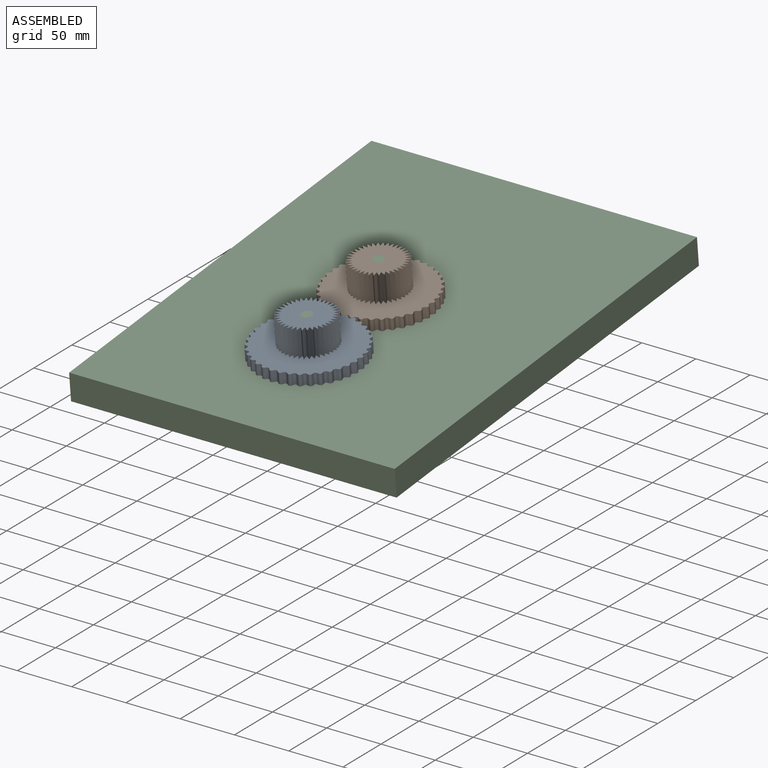
[diagram: assembled view]
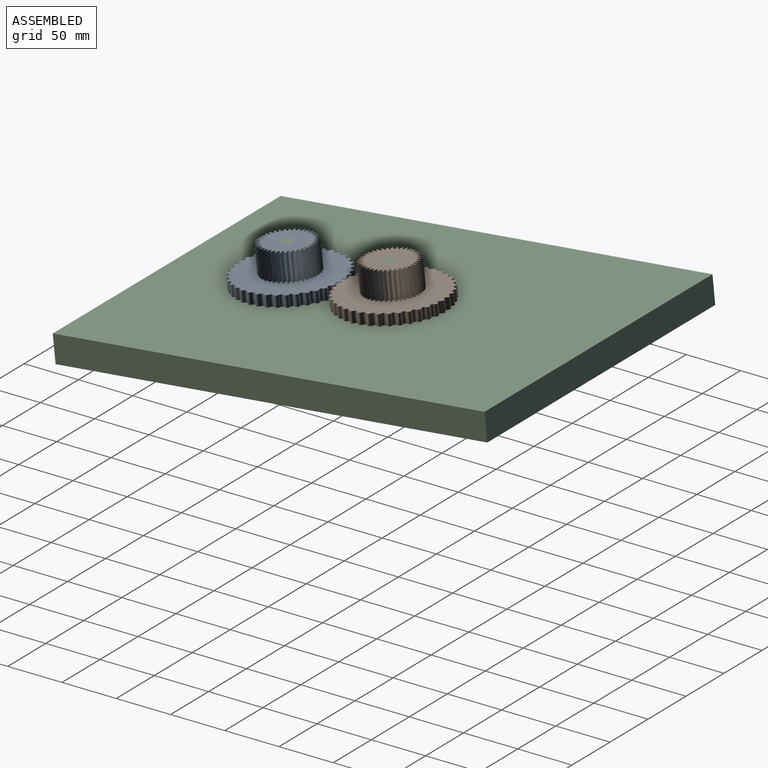
[diagram: assembled view, second angle]
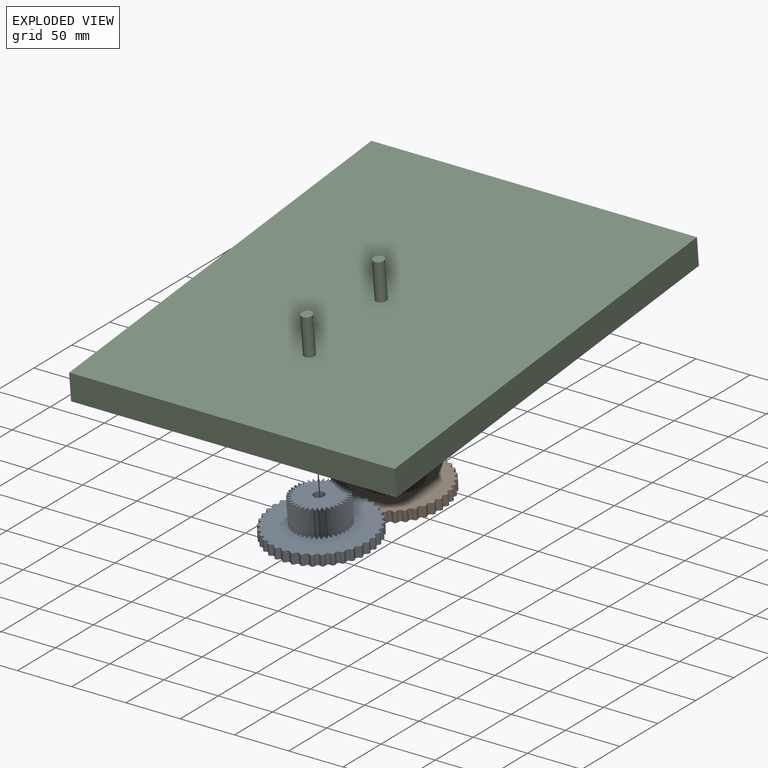
[diagram: exploded view]
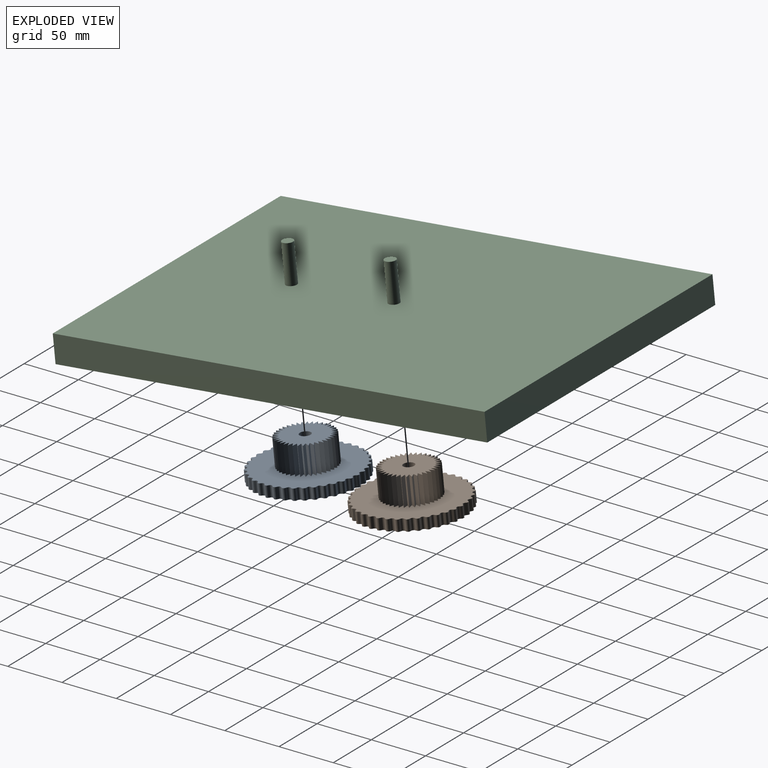
[diagram: exploded view, second angle]
ASSEMBLY  parts=3 mates=2
PART A: 233 faces, bbox 97.1x97.1x35 mm
  f0: plane 97.14x97.08mm, normal (0,0,1), area 5476.4mm2, adj f1,f2,f3,f4,f5,f6,f7,f8
  f1: plane 10x1.14mm, normal (0.46,0.89,0), area 12.8mm2, adj f0,f78,f159,f232
  f2: plane 10x1.22mm, normal (-0.99,0.16,0), area 12.4mm2, adj f0,f78,f159,f160
  f3: plane 10x1.22mm, normal (0.3,0.95,0), area 12.8mm2, adj f0,f78,f160,f161
  f4: plane 10x1.24mm, normal (-1,0,0), area 12.4mm2, adj f0,f78,f161,f162
  f5: plane 10x1.26mm, normal (0.14,0.99,0), area 12.8mm2, adj f0,f78,f162,f163
  f6: plane 10x1.22mm, normal (-0.99,-0.17,0), area 12.4mm2, adj f0,f78,f163,f164
  f7: plane 10x1.28mm, normal (-0.02,1,0), area 12.8mm2, adj f0,f78,f164,f165
  f8: plane 10x1.17mm, normal (-0.95,-0.33,0), area 12.4mm2, adj f0,f78,f165,f166
  f9: plane 10x1.26mm, normal (-0.19,0.98,0), area 12.8mm2, adj f0,f78,f166,f167
  f10: plane 10x1.09mm, normal (-0.88,-0.48,0), area 12.4mm2, adj f0,f78,f167,f168
  f11: plane 10x1.2mm, normal (-0.35,0.94,0), area 12.8mm2, adj f0,f78,f168,f169
  f12: plane 10x0.97mm, normal (-0.79,-0.62,0), area 12.4mm2, adj f0,f78,f169,f170
  f13: plane 10x1.11mm, normal (-0.5,0.87,0), area 12.8mm2, adj f0,f78,f170,f171
  f14: plane 10x0.91mm, normal (-0.68,-0.74,0), area 12.4mm2, adj f0,f78,f171,f172
  f15: plane 10x0.99mm, normal (-0.63,0.78,0), area 12.8mm2, adj f0,f78,f172,f173
  f16: plane 10x1.04mm, normal (-0.55,-0.84,0), area 12.4mm2, adj f0,f78,f173,f174
  f17: plane 10x0.96mm, normal (-0.75,0.66,0), area 12.8mm2, adj f0,f78,f174,f175
  f18: plane 10x1.13mm, normal (-0.4,-0.92,0), area 12.4mm2, adj f0,f78,f175,f176
  f19: plane 10x1.08mm, normal (-0.85,0.53,0), area 12.8mm2, adj f0,f78,f176,f177
  f20: plane 10x1.2mm, normal (-0.24,-0.97,0), area 12.4mm2, adj f0,f78,f177,f178
  f21: plane 10x1.18mm, normal (-0.92,0.38,0), area 12.8mm2, adj f0,f78,f178,f179
  f22: plane 10x1.23mm, normal (-0.08,-1,0), area 12.4mm2, adj f0,f78,f179,f180
  f23: plane 10x1.25mm, normal (-0.97,0.22,0), area 12.8mm2, adj f0,f78,f180,f181
  f24: plane 10x1.23mm, normal (0.08,-1,0), area 12.4mm2, adj f0,f78,f181,f182
  f25: plane 10x1.28mm, normal (-1,0.06,0), area 12.8mm2, adj f0,f78,f182,f183
  f26: plane 10x1.2mm, normal (0.25,-0.97,0), area 12.4mm2, adj f0,f78,f183,f184
  f27: plane 10x1.27mm, normal (-0.99,-0.1,0), area 12.8mm2, adj f0,f78,f184,f185
  f28: plane 10x1.13mm, normal (0.4,-0.91,0), area 12.4mm2, adj f0,f78,f185,f186
  f29: plane 10x1.23mm, normal (-0.96,-0.27,0), area 12.8mm2, adj f0,f78,f186,f187
  f30: plane 10x1.03mm, normal (0.55,-0.84,0), area 12.4mm2, adj f0,f78,f187,f188
  f31: plane 10x1.16mm, normal (-0.91,-0.42,0), area 12.8mm2, adj f0,f78,f188,f189
  f32: plane 10x2.61mm, normal (0.68,-0.73,0), area 35.5mm2, adj f0,f33,f78,f189
  f33: plane 10x2.96mm, normal (-0.82,-0.57,0), area 35.9mm2, adj f0,f32,f78,f190
  f34: plane 10x0.98mm, normal (0.79,-0.61,0), area 12.4mm2, adj f0,f78,f190,f191
  f35: plane 10x0.92mm, normal (-0.72,-0.69,0), area 12.8mm2, adj f0,f78,f191,f192
  f36: plane 10x1.09mm, normal (0.88,-0.47,0), area 12.4mm2, adj f0,f78,f192,f193
  f37: plane 10x1.03mm, normal (-0.6,-0.8,0), area 12.8mm2, adj f0,f78,f193,f194
  f38: plane 10x1.17mm, normal (0.95,-0.32,0), area 12.4mm2, adj f0,f78,f194,f195
  f39: plane 10x1.14mm, normal (-0.46,-0.89,0), area 12.8mm2, adj f0,f78,f195,f196
  f40: plane 10x1.22mm, normal (0.99,-0.16,0), area 12.4mm2, adj f0,f78,f196,f197
  f41: plane 10x1.22mm, normal (-0.3,-0.95,0), area 12.8mm2, adj f0,f78,f197,f198
  f42: plane 10x1.24mm, normal (1,0,0), area 12.4mm2, adj f0,f78,f198,f199
  f43: plane 10x1.26mm, normal (-0.14,-0.99,0), area 12.8mm2, adj f0,f78,f199,f200
  f44: plane 10x1.22mm, normal (0.99,0.17,0), area 12.4mm2, adj f0,f78,f200,f201
  f45: plane 10x1.28mm, normal (0.02,-1,0), area 12.8mm2, adj f0,f78,f158,f201
  f46: plane 10x1.17mm, normal (0.95,0.33,0), area 12.4mm2, adj f0,f78,f158,f202
  f47: plane 10x1.26mm, normal (0.19,-0.98,0), area 12.8mm2, adj f0,f78,f202,f203
  f48: plane 10x1.09mm, normal (0.88,0.48,0), area 12.4mm2, adj f0,f78,f203,f204
  f49: plane 10x1.2mm, normal (0.35,-0.94,0), area 12.8mm2, adj f0,f78,f204,f205
  f50: plane 10x0.97mm, normal (0.79,0.62,0), area 12.4mm2, adj f0,f78,f205,f206
  f51: plane 10x1.11mm, normal (0.5,-0.87,0), area 12.8mm2, adj f0,f78,f206,f207
  f52: plane 10x0.91mm, normal (0.68,0.74,0), area 12.4mm2, adj f0,f78,f207,f208
  f53: plane 10x0.99mm, normal (0.63,-0.78,0), area 12.8mm2, adj f0,f78,f208,f209
  f54: plane 10x1.04mm, normal (0.55,0.84,0), area 12.4mm2, adj f0,f78,f209,f210
  f55: plane 10x0.96mm, normal (0.75,-0.66,0), area 12.8mm2, adj f0,f78,f210,f211
  f56: plane 10x1.13mm, normal (0.4,0.92,0), area 12.4mm2, adj f0,f78,f211,f212
  f57: plane 10x1.08mm, normal (0.85,-0.53,0), area 12.8mm2, adj f0,f78,f212,f213
  f58: plane 10x1.2mm, normal (0.24,0.97,0), area 12.4mm2, adj f0,f78,f213,f214
  f59: plane 10x1.18mm, normal (0.92,-0.38,0), area 12.8mm2, adj f0,f78,f214,f215
  f60: plane 10x1.23mm, normal (0.08,1,0), area 12.4mm2, adj f0,f78,f215,f216
  f61: plane 10x1.25mm, normal (0.97,-0.22,0), area 12.8mm2, adj f0,f78,f216,f217
  f62: plane 10x1.23mm, normal (-0.08,1,0), area 12.4mm2, adj f0,f78,f217,f218
  f63: plane 10x1.28mm, normal (1,-0.06,0), area 12.8mm2, adj f0,f78,f218,f219
  f64: plane 10x1.2mm, normal (-0.25,0.97,0), area 12.4mm2, adj f0,f78,f219,f220
  f65: plane 10x1.27mm, normal (0.99,0.1,0), area 12.8mm2, adj f0,f78,f220,f221
  f66: plane 10x1.13mm, normal (-0.4,0.91,0), area 12.4mm2, adj f0,f78,f221,f222
  f67: plane 10x1.23mm, normal (0.96,0.27,0), area 12.8mm2, adj f0,f78,f222,f223
  f68: plane 10x1.03mm, normal (-0.55,0.84,0), area 12.4mm2, adj f0,f78,f223,f224
  f69: plane 10x1.16mm, normal (0.91,0.42,0), area 12.8mm2, adj f0,f78,f224,f225
  f70: plane 10x0.91mm, normal (-0.68,0.73,0), area 12.4mm2, adj f0,f78,f225,f226
  f71: plane 10x1.05mm, normal (0.82,0.57,0), area 12.8mm2, adj f0,f78,f226,f227
  f72: plane 10x0.98mm, normal (-0.79,0.61,0), area 12.4mm2, adj f0,f78,f227,f228
  f73: plane 10x0.92mm, normal (0.72,0.69,0), area 12.8mm2, adj f0,f78,f228,f229
  f74: plane 10x1.09mm, normal (-0.88,0.47,0), area 12.4mm2, adj f0,f78,f229,f230
  f75: plane 10x1.03mm, normal (0.6,0.8,0), area 12.8mm2, adj f0,f78,f230,f231
  f76: cylinder r=5mm len=35mm, axis (0,0,-1), area 1099.6mm2, adj f78,f157
  f77: plane 10x1.17mm, normal (-0.95,0.32,0), area 12.4mm2, adj f0,f78,f231,f232
  f78: plane 97.14x97.08mm, normal (0,0,-1), area 6966.9mm2, adj f1,f2,f3,f4,f5,f6,f7,f8
  f79: plane 25x0mm, normal (-0.94,0.34,0), area 0mm2, adj f0,f80,f156,f157
  f80: plane 25x0mm, normal (0.96,0.28,0), area 0mm2, adj f0,f79,f81,f157
  f81: plane 25x5.01mm, normal (-0.94,0.34,0), area 133.1mm2, adj f0,f80,f82,f157
  f82: plane 25x4.81mm, normal (0.9,0.43,0), area 133.4mm2, adj f0,f81,f83,f157
  f83: plane 25x5.24mm, normal (-0.98,0.18,0), area 133.1mm2, adj f0,f82,f84,f157
  f84: plane 25x4.36mm, normal (0.82,0.58,0), area 133.4mm2, adj f0,f83,f85,f157
  f85: plane 25x5.32mm, normal (-1,0.02,0), area 133.1mm2, adj f0,f84,f86,f157
  f86: plane 25x3.79mm, normal (0.71,0.7,0), area 133.4mm2, adj f0,f85,f87,f157
  f87: plane 25x5.27mm, normal (-0.99,-0.15,0), area 133.1mm2, adj f0,f86,f88,f157
  f88: plane 25x4.33mm, normal (0.59,0.81,0), area 133.4mm2, adj f0,f87,f89,f157
  f89: plane 25x5.06mm, normal (-0.95,-0.31,0), area 133.1mm2, adj f0,f88,f90,f157
  f90: plane 25x4.78mm, normal (0.44,0.9,0), area 133.4mm2, adj f0,f89,f91,f157
  f91: plane 25x4.72mm, normal (-0.89,-0.46,0), area 133.1mm2, adj f0,f90,f92,f157
  f92: plane 25x5.11mm, normal (0.29,0.96,0), area 133.4mm2, adj f0,f91,f93,f157
  f93: plane 25x4.25mm, normal (-0.8,-0.6,0), area 133.1mm2, adj f0,f92,f94,f157
  f94: plane 25x5.29mm, normal (0.13,0.99,0), area 133.4mm2, adj f0,f93,f95,f157
  f95: plane 25x3.86mm, normal (-0.69,-0.73,0), area 133.1mm2, adj f0,f94,f96,f157
  f96: plane 25x5.33mm, normal (-0.04,1,0), area 133.4mm2, adj f0,f95,f97,f157
  f97: plane 25x4.41mm, normal (-0.56,-0.83,0), area 133.1mm2, adj f0,f96,f98,f157
  f98: plane 25x5.23mm, normal (-0.2,0.98,0), area 133.4mm2, adj f0,f97,f99,f157
  f99: plane 25x4.84mm, normal (-0.42,-0.91,0), area 133.1mm2, adj f0,f98,f100,f157
  f100: plane 25x4.98mm, normal (-0.36,0.93,0), area 133.4mm2, adj f0,f99,f101,f157
  f101: plane 25x5.14mm, normal (-0.26,-0.97,0), area 133.1mm2, adj f0,f100,f102,f157
  f102: plane 25x4.6mm, normal (-0.51,0.86,0), area 133.4mm2, adj f0,f101,f103,f157
  f103: plane 25x5.3mm, normal (-0.1,-1,0), area 133.1mm2, adj f0,f102,f104,f157
  f104: plane 25x4.09mm, normal (-0.64,0.77,0), area 133.4mm2, adj f0,f103,f105,f157
  f105: plane 25x5.31mm, normal (0.07,-1,0), area 133.1mm2, adj f0,f104,f106,f157
  f106: plane 25x4.05mm, normal (-0.76,0.65,0), area 133.4mm2, adj f0,f105,f107,f157
  f107: plane 25x5.18mm, normal (0.23,-0.97,0), area 133.1mm2, adj f0,f106,f108,f157
  f108: plane 25x4.57mm, normal (-0.86,0.52,0), area 133.4mm2, adj f0,f107,f109,f157
  f109: plane 25x4.91mm, normal (0.39,-0.92,0), area 133.1mm2, adj f0,f108,f110,f157
  f110: plane 25x4.96mm, normal (-0.93,0.37,0), area 133.4mm2, adj f0,f109,f111,f157
  f111: plane 25x4.5mm, normal (0.53,-0.85,0), area 133.1mm2, adj f0,f110,f112,f157
  f112: plane 25x5.22mm, normal (-0.98,0.21,0), area 133.4mm2, adj f0,f111,f113,f157
  f113: plane 25x3.97mm, normal (0.67,-0.75,0), area 133.1mm2, adj f0,f112,f114,f157
  f114: plane 25x5.33mm, normal (-1,0.05,0), area 133.4mm2, adj f0,f113,f115,f157
  f115: plane 25x4.15mm, normal (0.78,-0.63,0), area 133.1mm2, adj f0,f114,f116,f157
  f116: plane 25x5.3mm, normal (-0.99,-0.12,0), area 133.4mm2, adj f0,f115,f117,f157
  f117: plane 25x4.64mm, normal (0.87,-0.49,0), area 133.1mm2, adj f0,f116,f118,f157
  f118: plane 25x5.12mm, normal (-0.96,-0.28,0), area 133.4mm2, adj f0,f117,f119,f157
  f119: plane 25x5.01mm, normal (0.94,-0.34,0), area 133.1mm2, adj f0,f118,f120,f157
  f120: plane 25x4.81mm, normal (-0.9,-0.43,0), area 133.4mm2, adj f0,f119,f121,f157
  f121: plane 25x5.24mm, normal (0.98,-0.18,0), area 133.1mm2, adj f0,f120,f122,f157
  f122: plane 25x4.36mm, normal (-0.82,-0.58,0), area 133.4mm2, adj f0,f121,f123,f157
  f123: plane 25x5.32mm, normal (1,-0.02,0), area 133.1mm2, adj f0,f122,f124,f157
  f124: plane 25x3.79mm, normal (-0.71,-0.7,0), area 133.4mm2, adj f0,f123,f125,f157
  f125: plane 25x5.27mm, normal (0.99,0.15,0), area 133.1mm2, adj f0,f124,f126,f157
  f126: plane 25x4.33mm, normal (-0.59,-0.81,0), area 133.4mm2, adj f0,f125,f127,f157
  f127: plane 25x5.06mm, normal (0.95,0.31,0), area 133.1mm2, adj f0,f126,f128,f157
  f128: plane 25x4.78mm, normal (-0.44,-0.9,0), area 133.4mm2, adj f0,f127,f129,f157
  f129: plane 25x4.72mm, normal (0.89,0.46,0), area 133.1mm2, adj f0,f128,f130,f157
  f130: plane 25x5.11mm, normal (-0.29,-0.96,0), area 133.4mm2, adj f0,f129,f131,f157
  f131: plane 25x4.25mm, normal (0.8,0.6,0), area 133.1mm2, adj f0,f130,f132,f157
  f132: plane 25x5.29mm, normal (-0.13,-0.99,0), area 133.4mm2, adj f0,f131,f133,f157
  f133: plane 25x3.86mm, normal (0.69,0.73,0), area 133.1mm2, adj f0,f132,f134,f157
  f134: plane 25x5.33mm, normal (0.04,-1,0), area 133.4mm2, adj f0,f133,f135,f157
  f135: plane 25x4.41mm, normal (0.56,0.83,0), area 133.1mm2, adj f0,f134,f136,f157
  f136: plane 25x5.23mm, normal (0.2,-0.98,0), area 133.4mm2, adj f0,f135,f137,f157
  f137: plane 25x4.84mm, normal (0.42,0.91,0), area 133.1mm2, adj f0,f136,f138,f157
  f138: plane 25x4.98mm, normal (0.36,-0.93,0), area 133.4mm2, adj f0,f137,f139,f157
  f139: plane 25x5.14mm, normal (0.26,0.97,0), area 133.1mm2, adj f0,f138,f140,f157
  f140: plane 25x4.6mm, normal (0.51,-0.86,0), area 133.4mm2, adj f0,f139,f141,f157
  f141: plane 25x5.3mm, normal (0.1,1,0), area 133.1mm2, adj f0,f140,f142,f157
  f142: plane 25x4.09mm, normal (0.64,-0.77,0), area 133.4mm2, adj f0,f141,f143,f157
  f143: plane 25x5.31mm, normal (-0.07,1,0), area 133.1mm2, adj f0,f142,f144,f157
  f144: plane 25x4.05mm, normal (0.76,-0.65,0), area 133.4mm2, adj f0,f143,f145,f157
  f145: plane 25x5.18mm, normal (-0.23,0.97,0), area 133.1mm2, adj f0,f144,f146,f157
  f146: plane 25x4.57mm, normal (0.86,-0.52,0), area 133.4mm2, adj f0,f145,f147,f157
  f147: plane 25x4.91mm, normal (-0.39,0.92,0), area 133.1mm2, adj f0,f146,f148,f157
  f148: plane 25x4.96mm, normal (0.93,-0.37,0), area 133.4mm2, adj f0,f147,f149,f157
  f149: plane 25x4.5mm, normal (-0.53,0.85,0), area 133.1mm2, adj f0,f148,f150,f157
  f150: plane 25x5.22mm, normal (0.98,-0.21,0), area 133.4mm2, adj f0,f149,f151,f157
  f151: plane 25x3.97mm, normal (-0.67,0.75,0), area 133.1mm2, adj f0,f150,f152,f157
  f152: plane 25x5.33mm, normal (1,-0.05,0), area 133.4mm2, adj f0,f151,f153,f157
  f153: plane 25x4.15mm, normal (-0.78,0.63,0), area 133.1mm2, adj f0,f152,f154,f157
  f154: plane 25x5.3mm, normal (0.99,0.12,0), area 133.4mm2, adj f0,f153,f155,f157
  f155: plane 25x4.64mm, normal (-0.87,0.49,0), area 133.1mm2, adj f0,f154,f156,f157
  f156: plane 25x5.12mm, normal (0.96,0.28,0), area 133.4mm2, adj f0,f79,f155,f157
  f157: plane 49.97x49.94mm, normal (0,0,1), area 1490.5mm2, adj f76,f79,f80,f81,f82,f83,f84,f85
  f158: cylinder r=2mm len=10mm, axis (0,0,1), area 37.6mm2, adj f0,f45,f46,f78
  f159: cylinder r=2mm len=10mm, axis (0,0,1), area 37.6mm2, adj f0,f1,f2,f78
  f160: cylinder r=2mm len=10mm, axis (0,0,-1), area 34.3mm2, adj f0,f2,f3,f78
  f161: cylinder r=2mm len=10mm, axis (0,0,1), area 37.6mm2, adj f0,f3,f4,f78
  f162: cylinder r=2mm len=10mm, axis (0,0,-1), area 34.3mm2, adj f0,f4,f5,f78
  f163: cylinder r=2mm len=10mm, axis (0,0,1), area 37.6mm2, adj f0,f5,f6,f78
  f164: cylinder r=2mm len=10mm, axis (0,0,-1), area 34.3mm2, adj f0,f6,f7,f78
  f165: cylinder r=2mm len=10mm, axis (0,0,1), area 37.6mm2, adj f0,f7,f8,f78
  f166: cylinder r=2mm len=10mm, axis (0,0,-1), area 34.3mm2, adj f0,f8,f9,f78
  f167: cylinder r=2mm len=10mm, axis (0,0,1), area 37.6mm2, adj f0,f9,f10,f78
  f168: cylinder r=2mm len=10mm, axis (0,0,-1), area 34.3mm2, adj f0,f10,f11,f78
  f169: cylinder r=2mm len=10mm, axis (0,0,1), area 37.6mm2, adj f0,f11,f12,f78
  f170: cylinder r=2mm len=10mm, axis (0,0,-1), area 34.3mm2, adj f0,f12,f13,f78
  f171: cylinder r=2mm len=10mm, axis (0,0,1), area 37.6mm2, adj f0,f13,f14,f78
  f172: cylinder r=2mm len=10mm, axis (0,0,-1), area 34.3mm2, adj f0,f14,f15,f78
  f173: cylinder r=2mm len=10mm, axis (0,0,1), area 37.6mm2, adj f0,f15,f16,f78
  f174: cylinder r=2mm len=10mm, axis (0,0,-1), area 34.3mm2, adj f0,f16,f17,f78
  f175: cylinder r=2mm len=10mm, axis (0,0,1), area 37.6mm2, adj f0,f17,f18,f78
  f176: cylinder r=2mm len=10mm, axis (0,0,-1), area 34.3mm2, adj f0,f18,f19,f78
  f177: cylinder r=2mm len=10mm, axis (0,0,1), area 37.6mm2, adj f0,f19,f20,f78
  f178: cylinder r=2mm len=10mm, axis (0,0,-1), area 34.3mm2, adj f0,f20,f21,f78
  f179: cylinder r=2mm len=10mm, axis (0,0,1), area 37.6mm2, adj f0,f21,f22,f78
  f180: cylinder r=2mm len=10mm, axis (0,0,-1), area 34.3mm2, adj f0,f22,f23,f78
  f181: cylinder r=2mm len=10mm, axis (0,0,1), area 37.6mm2, adj f0,f23,f24,f78
  f182: cylinder r=2mm len=10mm, axis (0,0,-1), area 34.3mm2, adj f0,f24,f25,f78
  f183: cylinder r=2mm len=10mm, axis (0,0,1), area 37.6mm2, adj f0,f25,f26,f78
  f184: cylinder r=2mm len=10mm, axis (0,0,-1), area 34.3mm2, adj f0,f26,f27,f78
  f185: cylinder r=2mm len=10mm, axis (0,0,1), area 37.6mm2, adj f0,f27,f28,f78
  f186: cylinder r=2mm len=10mm, axis (0,0,-1), area 34.3mm2, adj f0,f28,f29,f78
  f187: cylinder r=2mm len=10mm, axis (0,0,1), area 37.6mm2, adj f0,f29,f30,f78
  f188: cylinder r=2mm len=10mm, axis (0,0,-1), area 34.3mm2, adj f0,f30,f31,f78
  f189: cylinder r=2mm len=10mm, axis (0,0,1), area 37.6mm2, adj f0,f31,f32,f78
  f190: cylinder r=2mm len=10mm, axis (0,0,1), area 37.6mm2, adj f0,f33,f34,f78
  f191: cylinder r=2mm len=10mm, axis (0,0,-1), area 34.3mm2, adj f0,f34,f35,f78
  f192: cylinder r=2mm len=10mm, axis (0,0,1), area 37.6mm2, adj f0,f35,f36,f78
  f193: cylinder r=2mm len=10mm, axis (0,0,-1), area 34.3mm2, adj f0,f36,f37,f78
  f194: cylinder r=2mm len=10mm, axis (0,0,1), area 37.6mm2, adj f0,f37,f38,f78
  f195: cylinder r=2mm len=10mm, axis (0,0,-1), area 34.3mm2, adj f0,f38,f39,f78
  f196: cylinder r=2mm len=10mm, axis (0,0,1), area 37.6mm2, adj f0,f39,f40,f78
  f197: cylinder r=2mm len=10mm, axis (0,0,-1), area 34.3mm2, adj f0,f40,f41,f78
  f198: cylinder r=2mm len=10mm, axis (0,0,1), area 37.6mm2, adj f0,f41,f42,f78
  f199: cylinder r=2mm len=10mm, axis (0,0,-1), area 34.3mm2, adj f0,f42,f43,f78
  f200: cylinder r=2mm len=10mm, axis (0,0,1), area 37.6mm2, adj f0,f43,f44,f78
  f201: cylinder r=2mm len=10mm, axis (0,0,-1), area 34.3mm2, adj f0,f44,f45,f78
  f202: cylinder r=2mm len=10mm, axis (0,0,-1), area 34.3mm2, adj f0,f46,f47,f78
  f203: cylinder r=2mm len=10mm, axis (0,0,1), area 37.6mm2, adj f0,f47,f48,f78
  f204: cylinder r=2mm len=10mm, axis (0,0,-1), area 34.3mm2, adj f0,f48,f49,f78
  f205: cylinder r=2mm len=10mm, axis (0,0,1), area 37.6mm2, adj f0,f49,f50,f78
  f206: cylinder r=2mm len=10mm, axis (0,0,-1), area 34.3mm2, adj f0,f50,f51,f78
  f207: cylinder r=2mm len=10mm, axis (0,0,1), area 37.6mm2, adj f0,f51,f52,f78
  f208: cylinder r=2mm len=10mm, axis (0,0,-1), area 34.3mm2, adj f0,f52,f53,f78
  f209: cylinder r=2mm len=10mm, axis (0,0,1), area 37.6mm2, adj f0,f53,f54,f78
  f210: cylinder r=2mm len=10mm, axis (0,0,-1), area 34.3mm2, adj f0,f54,f55,f78
  f211: cylinder r=2mm len=10mm, axis (0,0,1), area 37.6mm2, adj f0,f55,f56,f78
  f212: cylinder r=2mm len=10mm, axis (0,0,-1), area 34.3mm2, adj f0,f56,f57,f78
  f213: cylinder r=2mm len=10mm, axis (0,0,1), area 37.6mm2, adj f0,f57,f58,f78
  f214: cylinder r=2mm len=10mm, axis (0,0,-1), area 34.3mm2, adj f0,f58,f59,f78
  f215: cylinder r=2mm len=10mm, axis (0,0,1), area 37.6mm2, adj f0,f59,f60,f78
  f216: cylinder r=2mm len=10mm, axis (0,0,-1), area 34.3mm2, adj f0,f60,f61,f78
  f217: cylinder r=2mm len=10mm, axis (0,0,1), area 37.6mm2, adj f0,f61,f62,f78
  f218: cylinder r=2mm len=10mm, axis (0,0,-1), area 34.3mm2, adj f0,f62,f63,f78
  f219: cylinder r=2mm len=10mm, axis (0,0,1), area 37.6mm2, adj f0,f63,f64,f78
  f220: cylinder r=2mm len=10mm, axis (0,0,-1), area 34.3mm2, adj f0,f64,f65,f78
  f221: cylinder r=2mm len=10mm, axis (0,0,1), area 37.6mm2, adj f0,f65,f66,f78
  f222: cylinder r=2mm len=10mm, axis (0,0,-1), area 34.3mm2, adj f0,f66,f67,f78
  f223: cylinder r=2mm len=10mm, axis (0,0,1), area 37.6mm2, adj f0,f67,f68,f78
  f224: cylinder r=2mm len=10mm, axis (0,0,-1), area 34.3mm2, adj f0,f68,f69,f78
  f225: cylinder r=2mm len=10mm, axis (0,0,1), area 37.6mm2, adj f0,f69,f70,f78
  f226: cylinder r=2mm len=10mm, axis (0,0,-1), area 34.3mm2, adj f0,f70,f71,f78
  f227: cylinder r=2mm len=10mm, axis (0,0,1), area 37.6mm2, adj f0,f71,f72,f78
  f228: cylinder r=2mm len=10mm, axis (0,0,-1), area 34.3mm2, adj f0,f72,f73,f78
  f229: cylinder r=2mm len=10mm, axis (0,0,1), area 37.6mm2, adj f0,f73,f74,f78
  f230: cylinder r=2mm len=10mm, axis (0,0,-1), area 34.3mm2, adj f0,f74,f75,f78
  f231: cylinder r=2mm len=10mm, axis (0,0,1), area 37.6mm2, adj f0,f75,f77,f78
  f232: cylinder r=2mm len=10mm, axis (0,0,-1), area 34.3mm2, adj f0,f1,f77,f78
PART B: same geometry as A
PART C: 10 faces, bbox 300x400x60 mm
  f0: plane 300x25mm, normal (0,1,0), area 7500mm2, adj f1,f3,f4,f5
  f1: plane 400x25mm, normal (-1,0,0), area 10000mm2, adj f0,f2,f4,f5
  f2: plane 300x25mm, normal (0,-1,0), area 7500mm2, adj f1,f3,f4,f5
  f3: plane 400x25mm, normal (1,0,0), area 10000mm2, adj f0,f2,f4,f5
  f4: plane 400x300mm, normal (0,0,1), area 119842.9mm2, adj f0,f1,f2,f3,f6,f8
  f5: plane 400x300mm, normal (0,0,-1), area 120000mm2, adj f0,f1,f2,f3
  f6: cylinder r=5mm len=35mm, axis (0,0,-1), area 1099.6mm2, adj f4,f7
  f7: plane 10x10mm, normal (0,0,1), area 78.5mm2, adj f6
  f8: cylinder r=5mm len=35mm, axis (0,0,-1), area 1099.6mm2, adj f4,f9
  f9: plane 10x10mm, normal (0,0,1), area 78.5mm2, adj f8
PLACE A rot(axis=(0.07,0.05,-1),75.9deg) t=(14.76,-8.22,79.58)mm
PLACE B rot(axis=(0.04,0.05,-1),104.4deg) t=(14.76,86.27,89.34)mm
PLACE C rot(axis=(1,0,0),5.9deg) t=(14.76,-5.65,54.71)mm fixed
MATE revolute C.f8 <-> B.f76  axis (0,-0.1,0.99) through (14.76,82.67,124.16)mm
MATE revolute C.f6 <-> A.f76  axis (0,-0.1,0.99) through (14.76,-11.82,114.39)mm
